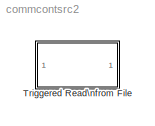
MODEL commcontsrc2
KIND library
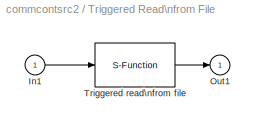
BLOCK [SubSystem] Triggered Read\nfrom File
  MaskCallbackString = |||||
  MaskDescription = The rising edge of the signal from the 2nd port triggers the block to read the next row of the specified file. The output is sample-based.
  MaskDisplay = plot(0,0,100,100,[25 25 05 05 25 25 05 13 13 17 17 17 15 real(exp(j*pi*([0:20]/10+1/2)))*3.5+15 15 25 25 25+[0:1/30:1]*70], [85 95 95 75 75 89 89 89 95 95 89 89 89 imag(exp(j*pi*([0:20]/10+1/2)))*3.5+85 89 89 85 sin([0:1/30:1]*pi*2)*10+85]-10,x,y);\ndisp(' \\nRd file')
  MaskEnableString = on,on,on,on,on,on
  MaskHelp = helpview(commbhelp)
  MaskIconFrame = on
  MaskIconOpaque = on
  MaskIconRotate = port
  MaskIconUnits = autoscale
  MaskInitialization = [x,y]=trigicon(0,50,get_param(gcb,'orientation'),2);\nnump = dec - 1;
  MaskPromptString = File name (string, include extension):|Data type:|Decimation:|Output vector length:|Cyclic repeat|Threshold in detecting trigger signal:
  MaskStyleString = edit,popup(ASCII|binary|float|integer),edit,edit,checkbox,edit
  MaskToolTipString = on,on,on,on,on,on
  MaskTunableValueString = on,on,on,on,on,on
  MaskType = Triggered Read from File
  MaskValueString = 'untitled.dat'|ASCII|1|1|off|0.5
  MaskVarAliasString = ,,,,,
  MaskVariables = filename=@1;datatype=&2;dec=@3;numout=@4;recursive=@5;threshold=@6;
  MaskVisibilityString = on,on,on,on,on,on
  Ports = [1, 1]
  TreatAsAtomicUnit = off
BLOCK [Inport] Triggered Read\nfrom File/In1
BLOCK [Outport] Triggered Read\nfrom File/Out1
  InitialOutput = 0
BLOCK [S-Function] Triggered Read\nfrom File/Triggered read\nfrom file
  FunctionName = sreadfil
  MaskIconFrame = on
  MaskIconOpaque = on
  MaskIconRotate = none
  MaskIconUnits = autoscale
  Parameters = filename,datatype,nump,numout,recursive,threshold
  Ports = [1, 1]
LINE Triggered Read\nfrom File/In1:1 -> Triggered Read\nfrom File/Triggered read\nfrom file:1
LINE Triggered Read\nfrom File/Triggered read\nfrom file:1 -> Triggered Read\nfrom File/Out1:1
